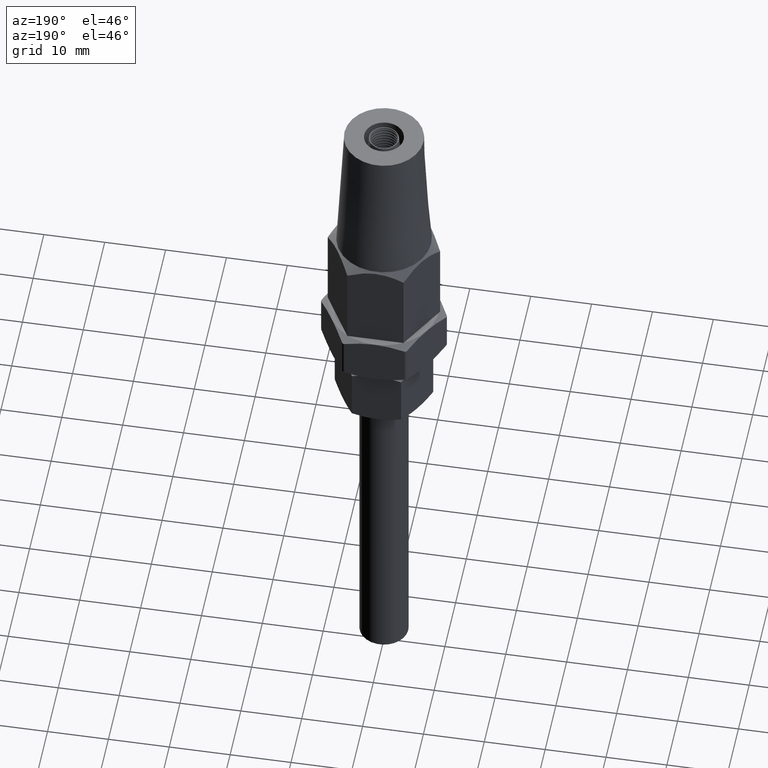
[diagram: clean part render]
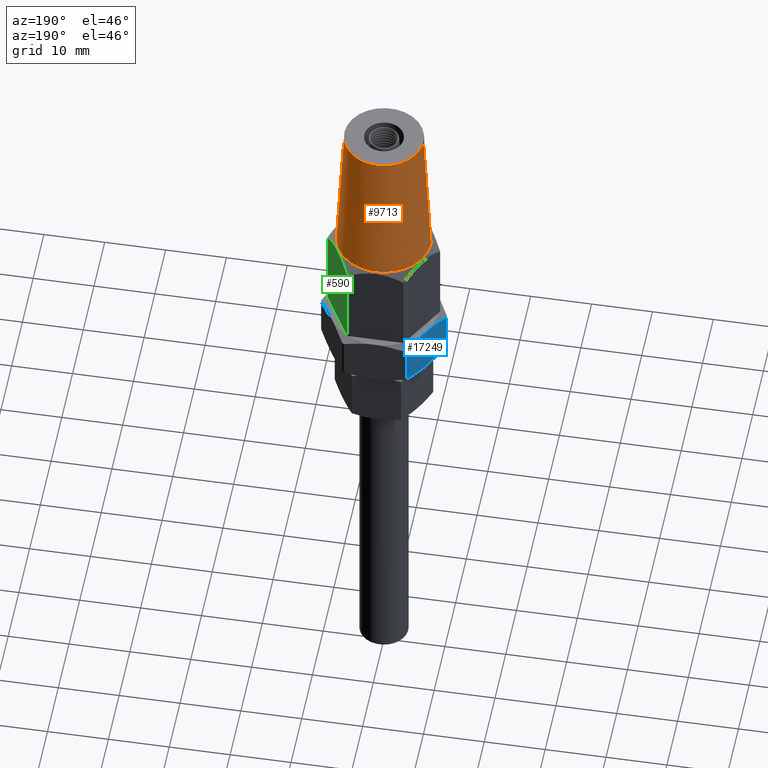
[diagram: same view with three faces highlighted in distinct colors, each labeled with its STEP entity id]
A machine part, auxiliary view with three faces highlighted in distinct colors.
Their STEP definitions:

[orange] entity #9713 — the highlighted conical surface has half-angle 3.045 deg.
#845 = AXIS2_PLACEMENT_3D ( 'NONE', #886, #14342, #2472 ) ;
#886 = CARTESIAN_POINT ( 'NONE',  ( 2.812752153957984000E-015, 0.0000000000000000000, 39.00000000000000700 ) ) ;
#971 = CARTESIAN_POINT ( 'NONE',  ( 6.500000000000002700, 7.960204194457795500E-016, 39.00000000000000700 ) ) ;
#1060 = LINE ( 'NONE', #971, #4069 ) ;
#2455 = AXIS2_PLACEMENT_3D ( 'NONE', #10300, #19019, #17795 ) ;
#2472 = DIRECTION ( 'NONE',  ( -1.000000000000000000, 0.0000000000000000000, 0.0000000000000000000 ) ) ;
#3454 = DIRECTION ( 'NONE',  ( -0.05311640040396672200, 0.0000000000000000000, -0.9985883275945725000 ) ) ;
#4069 = VECTOR ( 'NONE', #15931, 1000.000000000000100 ) ;
#4478 = EDGE_CURVE ( 'NONE', #12867, #10215, #7709, .T. ) ;
#4598 = FACE_OUTER_BOUND ( 'NONE', #13082, .T. ) ;
#5290 = LINE ( 'NONE', #11118, #10624 ) ;
#5540 = DIRECTION ( 'NONE',  ( -1.000000000000000000, 0.0000000000000000000, 0.0000000000000000000 ) ) ;
#7310 = VERTEX_POINT ( 'NONE', #10988 ) ;
#7485 = ORIENTED_EDGE ( 'NONE', *, *, #14228, .T. ) ;
#7709 = CIRCLE ( 'NONE', #2455, 7.750000000000000000 ) ;
#7848 = CARTESIAN_POINT ( 'NONE',  ( -6.499999999999997300, 0.0000000000000000000, 39.00000000000000700 ) ) ;
#7863 = AXIS2_PLACEMENT_3D ( 'NONE', #17592, #14413, #5540 ) ;
#8611 = ORIENTED_EDGE ( 'NONE', *, *, #4478, .F. ) ;
#9713 = ADVANCED_FACE ( 'NONE', ( #4598 ), #12270, .T. ) ;
#10215 = VERTEX_POINT ( 'NONE', #14454 ) ;
#10300 = CARTESIAN_POINT ( 'NONE',  ( 1.421421003193782500E-016, 0.0000000000000000000, 15.50000000000000000 ) ) ;
#10624 = VECTOR ( 'NONE', #3454, 1000.000000000000100 ) ;
#10988 = CARTESIAN_POINT ( 'NONE',  ( 6.500000000000002700, 8.725608443924891100E-016, 39.00000000000000700 ) ) ;
#11118 = CARTESIAN_POINT ( 'NONE',  ( -6.499999999999997300, 0.0000000000000000000, 39.00000000000000700 ) ) ;
#11521 = CARTESIAN_POINT ( 'NONE',  ( -7.750000000000000000, 0.0000000000000000000, 15.50000000000000000 ) ) ;
#11663 = EDGE_CURVE ( 'NONE', #17459, #12867, #5290, .T. ) ;
#12270 = CONICAL_SURFACE ( 'NONE', #7863, 6.500000000000000000, 0.05314140884493544900 ) ;
#12867 = VERTEX_POINT ( 'NONE', #11521 ) ;
#13082 = EDGE_LOOP ( 'NONE', ( #14768, #7485, #8611, #14763 ) ) ;
#13384 = CIRCLE ( 'NONE', #845, 6.500000000000000000 ) ;
#14228 = EDGE_CURVE ( 'NONE', #7310, #10215, #1060, .T. ) ;
#14342 = DIRECTION ( 'NONE',  ( -1.136429810058980800E-016, -0.0000000000000000000, -1.000000000000000000 ) ) ;
#14413 = DIRECTION ( 'NONE',  ( -1.136429810058980800E-016, -0.0000000000000000000, -1.000000000000000000 ) ) ;
#14454 = CARTESIAN_POINT ( 'NONE',  ( 7.750000000000000000, 9.491012693391987800E-016, 15.50000000000000000 ) ) ;
#14763 = ORIENTED_EDGE ( 'NONE', *, *, #11663, .F. ) ;
#14768 = ORIENTED_EDGE ( 'NONE', *, *, #14780, .T. ) ;
#14780 = EDGE_CURVE ( 'NONE', #17459, #7310, #13384, .T. ) ;
#15931 = DIRECTION ( 'NONE',  ( 0.05311640040396650000, 6.504882973694688700E-018, -0.9985883275945725000 ) ) ;
#17459 = VERTEX_POINT ( 'NONE', #7848 ) ;
#17592 = CARTESIAN_POINT ( 'NONE',  ( 2.812752153957984000E-015, 0.0000000000000000000, 39.00000000000000700 ) ) ;
#17795 = DIRECTION ( 'NONE',  ( -1.000000000000000000, 0.0000000000000000000, 0.0000000000000000000 ) ) ;
#19019 = DIRECTION ( 'NONE',  ( -9.170458085121177300E-018, -0.0000000000000000000, -1.000000000000000000 ) ) ;

[blue] entity #17249 — the highlighted planar face has unit normal (0.866, -0.5, 0).
#383 = CARTESIAN_POINT ( 'NONE',  ( -6.963658522143421500, -3.917530764621808300, 5.938589633087589800 ) ) ;
#1170 = CARTESIAN_POINT ( 'NONE',  ( -5.340489990003482600, 3.277725454518102500, 8.750000000000957500 ) ) ;
#1403 = CARTESIAN_POINT ( 'NONE',  ( -7.794228634059946300, -4.000000000000000000, 4.500000000000000000 ) ) ;
#1569 = CARTESIAN_POINT ( 'NONE',  ( -8.211190198137327200, 3.983105304560282000, 3.777801386214582300 ) ) ;
#1797 = CARTESIAN_POINT ( 'NONE',  ( -7.377267069982559100, -3.983105304560282900, 5.222198613785415900 ) ) ;
#1858 = CARTESIAN_POINT ( 'NONE',  ( -5.741184557810244700, -3.499225694536936400, 8.055976650242794100 ) ) ;
#2042 = CARTESIAN_POINT ( 'NONE',  ( -6.146699592125643500, 3.681425994525250500, 7.353604007575486700 ) ) ;
#2224 = CARTESIAN_POINT ( 'NONE',  ( -7.794228634059946300, 4.000000000000000000, 4.500000000000000000 ) ) ;
#2686 = VERTEX_POINT ( 'NONE', #2224 ) ;
#2845 = CARTESIAN_POINT ( 'NONE',  ( -5.340489990004034100, 4.000000000000000000, 8.749999999999998200 ) ) ;
#2879 = VERTEX_POINT ( 'NONE', #11628 ) ;
#2881 = CARTESIAN_POINT ( 'NONE',  ( -9.441757675994248100, -3.681425994525251000, 1.646395992424510000 ) ) ;
#3041 = CARTESIAN_POINT ( 'NONE',  ( -8.624798745976473700, 3.917530764621808300, 3.061410366912408400 ) ) ;
#3403 = DIRECTION ( 'NONE',  ( 0.0000000000000000000, -1.000000000000000000, 0.0000000000000000000 ) ) ;
#4213 = VERTEX_POINT ( 'NONE', #1170 ) ;
#4739 = ORIENTED_EDGE ( 'NONE', *, *, #15972, .T. ) ;
#5224 = AXIS2_PLACEMENT_3D ( 'NONE', #6943, #17449, #17511 ) ;
#5829 = B_SPLINE_CURVE_WITH_KNOTS ( 'NONE', 3,
 ( #6504, #9565, #2042, #9437, #8206, #14088 ),
 .UNSPECIFIED., .F., .F.,
 ( 4, 2, 4 ),
 ( 0.0002975789497955600200, 0.002777736201677725100, 0.005257893453559889800 ),
 .UNSPECIFIED. ) ;
#5965 = CARTESIAN_POINT ( 'NONE',  ( -8.002219598092121800, 4.000000000000008000, 4.139749082781036400 ) ) ;
#6197 = CARTESIAN_POINT ( 'NONE',  ( -6.145183925392109900, -3.680823192153086100, 7.356229219365312500 ) ) ;
#6374 = LINE ( 'NONE', #2845, #7068 ) ;
#6504 = CARTESIAN_POINT ( 'NONE',  ( -5.340489990003482600, 3.277725454518102500, 8.750000000000957500 ) ) ;
#6853 = CARTESIAN_POINT ( 'NONE',  ( -5.340489990004035900, -3.277725454518408900, 8.749999999999998200 ) ) ;
#6943 = CARTESIAN_POINT ( 'NONE',  ( -10.39230484541326200, 4.000000000000000000, -3.440685231744935100E-015 ) ) ;
#7035 = EDGE_CURVE ( 'NONE', #4213, #2686, #5829, .T. ) ;
#7068 = VECTOR ( 'NONE', #14641, 1000.000000000000000 ) ;
#7157 = CARTESIAN_POINT ( 'NONE',  ( -7.794228634059946300, -4.000000000000000000, 4.500000000000000000 ) ) ;
#7327 = CARTESIAN_POINT ( 'NONE',  ( -9.847272710309647800, 3.499225694536935100, 0.9440233497572030300 ) ) ;
#7756 = CARTESIAN_POINT ( 'NONE',  ( -5.340489990004035900, -3.277725454518408900, 8.749999999999998200 ) ) ;
#8206 = CARTESIAN_POINT ( 'NONE',  ( -7.376626006289531500, 4.000000000000008000, 5.223308968672627700 ) ) ;
#8531 = CARTESIAN_POINT ( 'NONE',  ( -10.24796727811640900, -3.277725454518102000, 0.2499999999990390700 ) ) ;
#8641 = EDGE_LOOP ( 'NONE', ( #4739, #9100, #8857, #8714, #14391, #17179 ) ) ;
#8677 = CARTESIAN_POINT ( 'NONE',  ( -7.794228634059946300, -4.000000000000000000, 4.500000000000000000 ) ) ;
#8714 = ORIENTED_EDGE ( 'NONE', *, *, #15698, .T. ) ;
#8856 = CARTESIAN_POINT ( 'NONE',  ( -8.624542989727617100, -3.931905003436078100, 3.061853349729772900 ) ) ;
#8857 = ORIENTED_EDGE ( 'NONE', *, *, #18534, .T. ) ;
#8985 = CARTESIAN_POINT ( 'NONE',  ( -8.211831261830358400, -4.000000000000008000, 3.776691031327368700 ) ) ;
#9100 = ORIENTED_EDGE ( 'NONE', *, *, #10860, .T. ) ;
#9126 = CARTESIAN_POINT ( 'NONE',  ( -7.586237670027768100, -4.000000000000006200, 4.860250917218961900 ) ) ;
#9437 = CARTESIAN_POINT ( 'NONE',  ( -6.963914278392269200, 3.931905003436077200, 5.938146650270222300 ) ) ;
#9565 = CARTESIAN_POINT ( 'NONE',  ( -5.742145293619545400, 3.499756780380039300, 8.054312607008428800 ) ) ;
#9798 = CARTESIAN_POINT ( 'NONE',  ( -10.24796727811640900, -3.277725454518102000, 0.2499999999990390700 ) ) ;
#10164 = VERTEX_POINT ( 'NONE', #9798 ) ;
#10860 = EDGE_CURVE ( 'NONE', #2879, #10164, #15077, .T. ) ;
#11086 = VECTOR ( 'NONE', #3403, 1000.000000000000000 ) ;
#11628 = CARTESIAN_POINT ( 'NONE',  ( -10.24796727811585500, 3.277725454518408500, 0.2499999999999982200 ) ) ;
#12280 = VERTEX_POINT ( 'NONE', #6853 ) ;
#13473 = CARTESIAN_POINT ( 'NONE',  ( -10.24796727811585500, 3.277725454518408500, 0.2499999999999982200 ) ) ;
#13515 = CARTESIAN_POINT ( 'NONE',  ( -6.758165510878794400, -3.868911075294670700, 6.294513969198245500 ) ) ;
#13888 = EDGE_CURVE ( 'NONE', #12280, #4213, #6374, .T. ) ;
#14088 = CARTESIAN_POINT ( 'NONE',  ( -7.794228634059946300, 4.000000000000000000, 4.500000000000000000 ) ) ;
#14391 = ORIENTED_EDGE ( 'NONE', *, *, #13888, .T. ) ;
#14398 = PLANE ( 'NONE',  #5224 ) ;
#14641 = DIRECTION ( 'NONE',  ( -0.0000000000000000000, 1.000000000000000000, -0.0000000000000000000 ) ) ;
#14854 = CARTESIAN_POINT ( 'NONE',  ( -9.443273342727783500, 3.680823192153084700, 1.643770780634685500 ) ) ;
#15077 = LINE ( 'NONE', #17237, #11086 ) ;
#15698 = EDGE_CURVE ( 'NONE', #16809, #12280, #17482, .T. ) ;
#15972 = EDGE_CURVE ( 'NONE', #2686, #2879, #19267, .T. ) ;
#16285 = CARTESIAN_POINT ( 'NONE',  ( -7.794228634059946300, 4.000000000000000000, 4.500000000000000000 ) ) ;
#16809 = VERTEX_POINT ( 'NONE', #7157 ) ;
#17016 = B_SPLINE_CURVE_WITH_KNOTS ( 'NONE', 3,
 ( #8531, #18944, #2881, #8856, #8985, #1403 ),
 .UNSPECIFIED., .F., .F.,
 ( 4, 2, 4 ),
 ( 0.0002975789497955587200, 0.002777736201677724700, 0.005257893453559890600 ),
 .UNSPECIFIED. ) ;
#17179 = ORIENTED_EDGE ( 'NONE', *, *, #7035, .T. ) ;
#17237 = CARTESIAN_POINT ( 'NONE',  ( -10.24796727811585500, 4.000000000000000000, 0.2499999999999969200 ) ) ;
#17249 = ADVANCED_FACE ( 'NONE', ( #18036 ), #14398, .F. ) ;
#17449 = DIRECTION ( 'NONE',  ( 0.8660254037844386000, 0.0000000000000000000, -0.5000000000000001100 ) ) ;
#17482 = B_SPLINE_CURVE_WITH_KNOTS ( 'NONE', 3,
 ( #8677, #9126, #1797, #383, #13515, #6197, #1858, #7756 ),
 .UNSPECIFIED., .F., .F.,
 ( 4, 2, 2, 4 ),
 ( 0.005257893453559890600, 0.006493159382140130400, 0.007728425310720370100, 0.01019895716788085000 ),
 .UNSPECIFIED. ) ;
#17511 = DIRECTION ( 'NONE',  ( -0.5000000000000001100, 0.0000000000000000000, -0.8660254037844386000 ) ) ;
#18036 = FACE_OUTER_BOUND ( 'NONE', #8641, .T. ) ;
#18534 = EDGE_CURVE ( 'NONE', #10164, #16809, #17016, .T. ) ;
#18944 = CARTESIAN_POINT ( 'NONE',  ( -9.846311974500345300, -3.499756780380038900, 0.9456873929915659000 ) ) ;
#19178 = CARTESIAN_POINT ( 'NONE',  ( -8.830291757241097300, 3.868911075294669400, 2.705486030801751400 ) ) ;
#19267 = B_SPLINE_CURVE_WITH_KNOTS ( 'NONE', 3,
 ( #16285, #5965, #1569, #3041, #19178, #14854, #7327, #13473 ),
 .UNSPECIFIED., .F., .F.,
 ( 4, 2, 2, 4 ),
 ( 0.005257893453559889800, 0.006493159382140130400, 0.007728425310720371900, 0.01019895716788085300 ),
 .UNSPECIFIED. ) ;

[green] entity #590 — the highlighted planar face has unit normal (-0.866, -0.5, 0).
#230 = DIRECTION ( 'NONE',  ( -0.5000000000000002200, 0.8660254037844384900, 0.0000000000000000000 ) ) ;
#265 = CARTESIAN_POINT ( 'NONE',  ( 5.355570307898126700, 6.723880123213151100, 14.68665689013399400 ) ) ;
#384 = CARTESIAN_POINT ( 'NONE',  ( 9.237604307034013500, 1.549694062766225000E-015, 0.0000000000000000000 ) ) ;
#590 = ADVANCED_FACE ( 'NONE', ( #15036 ), #19273, .F. ) ;
#1094 = VERTEX_POINT ( 'NONE', #18619 ) ;
#1447 = LINE ( 'NONE', #5230, #8634 ) ;
#2946 = CARTESIAN_POINT ( 'NONE',  ( 9.237604307034013500, 1.549694062766225000E-015, 0.0000000000000000000 ) ) ;
#2961 = EDGE_LOOP ( 'NONE', ( #5544, #6630, #4252, #11322 ) ) ;
#3227 = CARTESIAN_POINT ( 'NONE',  ( 8.507706789960851200, 1.264219583889082800, 14.68011007661160700 ) ) ;
#4252 = ORIENTED_EDGE ( 'NONE', *, *, #7844, .T. ) ;
#4501 = VERTEX_POINT ( 'NONE', #19284 ) ;
#4523 = DIRECTION ( 'NONE',  ( 0.5000000000000002200, -0.8660254037844384900, 0.0000000000000000000 ) ) ;
#5230 = CARTESIAN_POINT ( 'NONE',  ( 9.237604307034013500, 1.549694062766225000E-015, 15.50000000000000000 ) ) ;
#5301 = EDGE_CURVE ( 'NONE', #19276, #6921, #1447, .T. ) ;
#5362 = DIRECTION ( 'NONE',  ( -0.0000000000000000000, -0.0000000000000000000, -1.000000000000000000 ) ) ;
#5544 = ORIENTED_EDGE ( 'NONE', *, *, #5912, .F. ) ;
#5545 = CARTESIAN_POINT ( 'NONE',  ( 9.237604307034013500, 1.573174957750152300E-015, 14.01239569296600300 ) ) ;
#5912 = EDGE_CURVE ( 'NONE', #19276, #1094, #7243, .T. ) ;
#6022 = CARTESIAN_POINT ( 'NONE',  ( 7.739935964406828200, 2.594037662317758600, 15.09637714738196500 ) ) ;
#6084 = CARTESIAN_POINT ( 'NONE',  ( 8.876725567743847000, 0.6250603118219679700, 14.37327443225616500 ) ) ;
#6630 = ORIENTED_EDGE ( 'NONE', *, *, #5301, .T. ) ;
#6921 = VERTEX_POINT ( 'NONE', #384 ) ;
#7243 = B_SPLINE_CURVE_WITH_KNOTS ( 'NONE', 3,
 ( #9139, #6084, #3227, #9207, #6022, #13593, #15032, #7571, #16522, #265, #15162, #10635 ),
 .UNSPECIFIED., .F., .F.,
 ( 4, 2, 2, 2, 2, 4 ),
 ( 2.544314529397931800E-007, 0.002385773626046114600, 0.003578533223342702900, 0.004771292820639292500, 0.007156812015232469200, 0.009542331209825645800 ),
 .UNSPECIFIED. ) ;
#7571 = CARTESIAN_POINT ( 'NONE',  ( 6.533495485785080900, 4.683653867598337700, 15.25169592103926100 ) ) ;
#7844 = EDGE_CURVE ( 'NONE', #6921, #4501, #18593, .T. ) ;
#8041 = AXIS2_PLACEMENT_3D ( 'NONE', #11916, #13438, #4523 ) ;
#8634 = VECTOR ( 'NONE', #5362, 1000.000000000000000 ) ;
#8656 = CARTESIAN_POINT ( 'NONE',  ( 4.618802153517005000, 8.000000000000000000, 15.50000000000000000 ) ) ;
#9139 = CARTESIAN_POINT ( 'NONE',  ( 9.237604307034013500, 1.573174957750152300E-015, 14.01239569296600300 ) ) ;
#9207 = CARTESIAN_POINT ( 'NONE',  ( 7.934379645066441000, 2.257251328204608900, 15.00891477168110900 ) ) ;
#10635 = CARTESIAN_POINT ( 'NONE',  ( 4.618802153517005000, 8.000000000000000000, 14.01239569296600400 ) ) ;
#11322 = ORIENTED_EDGE ( 'NONE', *, *, #18412, .F. ) ;
#11530 = DIRECTION ( 'NONE',  ( -0.0000000000000000000, -0.0000000000000000000, -1.000000000000000000 ) ) ;
#11916 = CARTESIAN_POINT ( 'NONE',  ( 9.237604307034013500, 1.549694062766225000E-015, 15.50000000000000000 ) ) ;
#13438 = DIRECTION ( 'NONE',  ( -0.8660254037844386000, -0.5000000000000003300, 0.0000000000000000000 ) ) ;
#13593 = CARTESIAN_POINT ( 'NONE',  ( 7.342827493142404900, 3.281849710663746800, 15.21672055673864700 ) ) ;
#14664 = VECTOR ( 'NONE', #230, 1000.000000000000200 ) ;
#15032 = CARTESIAN_POINT ( 'NONE',  ( 7.138309739936279800, 3.636084850266588600, 15.24912493455081600 ) ) ;
#15036 = FACE_OUTER_BOUND ( 'NONE', #2961, .T. ) ;
#15162 = CARTESIAN_POINT ( 'NONE',  ( 4.981805898790796900, 7.371259069848007600, 14.37539943823990300 ) ) ;
#16522 = CARTESIAN_POINT ( 'NONE',  ( 6.137170710919218000, 5.370108513964311200, 15.12958881768753200 ) ) ;
#17064 = LINE ( 'NONE', #8656, #18440 ) ;
#18412 = EDGE_CURVE ( 'NONE', #1094, #4501, #17064, .T. ) ;
#18440 = VECTOR ( 'NONE', #11530, 1000.000000000000000 ) ;
#18593 = LINE ( 'NONE', #2946, #14664 ) ;
#18619 = CARTESIAN_POINT ( 'NONE',  ( 4.618802153517005000, 8.000000000000000000, 14.01239569296600400 ) ) ;
#19273 = PLANE ( 'NONE',  #8041 ) ;
#19276 = VERTEX_POINT ( 'NONE', #5545 ) ;
#19284 = CARTESIAN_POINT ( 'NONE',  ( 4.618802153517005000, 8.000000000000000000, 0.0000000000000000000 ) ) ;